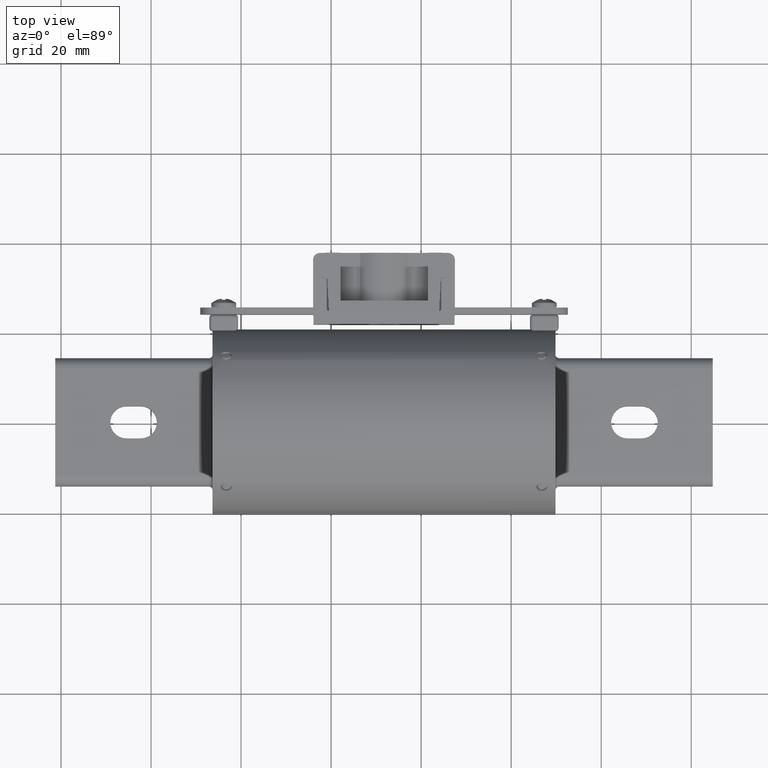
[diagram: clean part render]
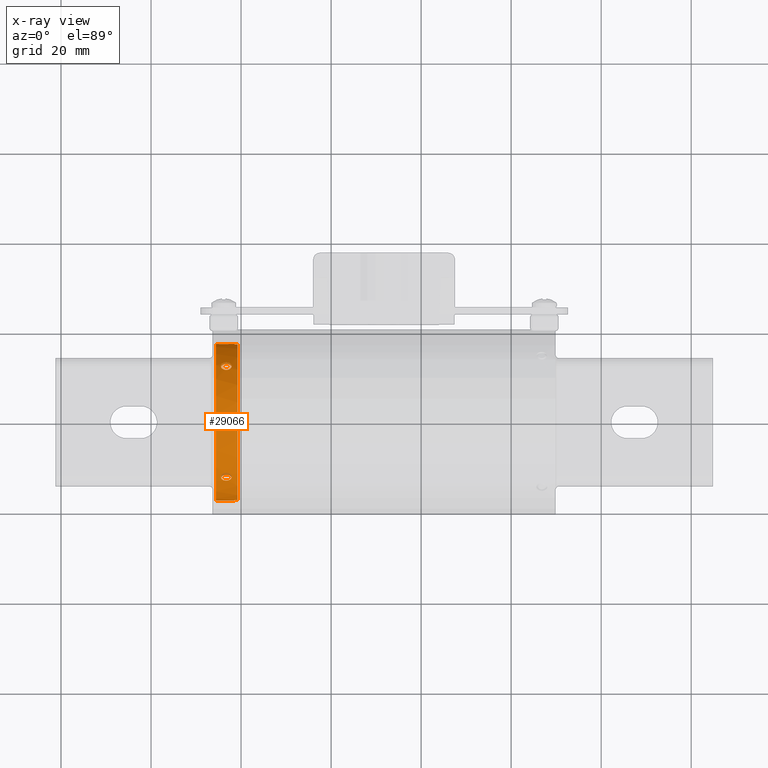
[diagram: x-ray — body ghosted, one internal face saturated and labeled with its STEP entity id]
A machine part, top view, then the same camera in x-ray: the body is ghosted and one INTERNAL B-rep face — a face not visible from any outside direction — is saturated and labeled: STEP entity #29066.
In plain terms, the highlighted cylindrical surface (bore or boss wall) has radius 17.4244 mm, axis along (1, 0, 0).
Its self-contained STEP definition (entity closure, byte-faithful):
#199 = CARTESIAN_POINT ( 'NONE',  ( -0.2053731272596947800, 0.6857686534380114100, -0.01813735378459945700 ) ) ;
#482 = CARTESIAN_POINT ( 'NONE',  ( -0.1270978318633261800, 0.6841348302265919400, -0.05057202286589389300 ) ) ;
#771 = CARTESIAN_POINT ( 'NONE',  ( -0.1070060465252214700, 0.6851493582180150400, 0.03454551280623481500 ) ) ;
#794 = ORIENTED_EDGE ( 'NONE', *, *, #84363, .F. ) ;
#1049 = CARTESIAN_POINT ( 'NONE',  ( -0.1862504825600998800, 0.6845405076635702200, 0.04477123205827906300 ) ) ;
#1505 = CARTESIAN_POINT ( 'NONE',  ( -0.1761022021065454500, -0.4762189752212091500, -0.4938055969507914600 ) ) ;
#1557 = DIRECTION ( 'NONE',  ( 0.0000000000000000000, -1.000000000000000000, -6.886690182978994900E-045 ) ) ;
#1774 = DIRECTION ( 'NONE',  ( -1.000000000000000000, 0.0000000000000000000, -3.944304526105058600E-031 ) ) ;
#1783 = CARTESIAN_POINT ( 'NONE',  ( -0.1009205708822145900, -0.5111269412556935800, -0.4575634553312367100 ) ) ;
#2049 = CARTESIAN_POINT ( 'NONE',  ( -0.03000000000000022800, 0.0000000000000000000, -1.183291357831526400E-032 ) ) ;
#2058 = CARTESIAN_POINT ( 'NONE',  ( -0.1299999999999999500, -0.4504368638349178800, -0.5173998760132858500 ) ) ;
#2096 = CARTESIAN_POINT ( 'NONE',  ( -0.1538667239239082400, 0.4549472806918523100, 0.5134439062448761200 ) ) ;
#2269 = VERTEX_POINT ( 'NONE', #77459 ) ;
#2373 = CARTESIAN_POINT ( 'NONE',  ( -0.1361980078004024200, 0.5173984086651702800, 0.4504385493224683500 ) ) ;
#2484 = EDGE_CURVE ( 'NONE', #58730, #80825, #39618, .T. ) ;
#2674 = CARTESIAN_POINT ( 'NONE',  ( -0.1008573756212167600, 0.4575991780833626500, 0.5110950550673301100 ) ) ;
#2693 = CARTESIAN_POINT ( 'NONE',  ( -0.05800000000000000300, 0.0000000000000000000, -2.287696625140934100E-032 ) ) ;
#2925 = CARTESIAN_POINT ( 'NONE',  ( -0.1299999999999999800, -0.5173998760132874100, 0.4504368638349163800 ) ) ;
#3028 = AXIS2_PLACEMENT_3D ( 'NONE', #6326, #6243, #5842 ) ;
#3149 = EDGE_CURVE ( 'NONE', #26209, #69699, #44503, .T. ) ;
#3208 = CARTESIAN_POINT ( 'NONE',  ( -0.1538697630624665000, -0.4549483046780772900, 0.5134430039707479400 ) ) ;
#3227 = EDGE_CURVE ( 'NONE', #83513, #83513, #73204, .T. ) ;
#3388 = CARTESIAN_POINT ( 'NONE',  ( -0.2500000000000000000, -0.6848905021972491200, 0.03900000000000000000 ) ) ;
#3499 = CARTESIAN_POINT ( 'NONE',  ( -0.08861661830004201300, -0.5016522245978484200, 0.4679466097413710300 ) ) ;
#3716 = EDGE_CURVE ( 'NONE', #46902, #80825, #84201, .T. ) ;
#3907 = VERTEX_POINT ( 'NONE', #36180 ) ;
#3955 = DIRECTION ( 'NONE',  ( -1.000000000000000000, -0.0000000000000000000, -3.944304526105058200E-031 ) ) ;
#4187 = CARTESIAN_POINT ( 'NONE',  ( -0.05800000000000000300, -0.6805879810869420700, -0.08599999999999996500 ) ) ;
#4208 = AXIS2_PLACEMENT_3D ( 'NONE', #57946, #18463, #64462 ) ;
#5842 = DIRECTION ( 'NONE',  ( 0.0000000000000000000, -1.000000000000000000, -6.891598729082331000E-045 ) ) ;
#6243 = DIRECTION ( 'NONE',  ( 1.000000000000000000, -0.0000000000000000000, 3.944304526105058600E-031 ) ) ;
#6326 = CARTESIAN_POINT ( 'NONE',  ( -0.2200000000000005800, 0.0000000000000000000, -8.677469957431151800E-032 ) ) ;
#6917 = CARTESIAN_POINT ( 'NONE',  ( -0.2008213689943734400, 0.6854278353745495400, -0.02817880629707372000 ) ) ;
#7200 = CARTESIAN_POINT ( 'NONE',  ( -0.1177113485480810300, 0.6845424630130819700, -0.04474122750398767900 ) ) ;
#7478 = CARTESIAN_POINT ( 'NONE',  ( -0.1176675749223793100, 0.6845446179295169300, 0.04470866561660433900 ) ) ;
#7545 = B_SPLINE_CURVE_WITH_KNOTS ( 'NONE', 3,
 ( #21068, #53911, #27700, #73536, #34329, #80062, #40937, #1505, #47536, #8187, #54204, #14777, #60734, #21358, #67308, #27965, #73829, #34603, #80337, #41223, #1783, #47838, #8454, #54493, #15054, #61008, #21636, #67565, #28243, #74119, #34890, #80633, #41511, #2058 ),
 .UNSPECIFIED., .T., .F.,
 ( 4, 2, 2, 2, 2, 2, 2, 2, 2, 2, 2, 2, 2, 2, 2, 2, 4 ),
 ( 0.0000000000000000000, 0.0004701053175745451800, 0.0009402106351490890600, 0.001410315952723632900, 0.001880421270298176800, 0.002350526587872720500, 0.002820631905447264600, 0.003290737223021808700, 0.003760842540596353600, 0.004230947858170899500, 0.004701053175745443500, 0.005171158493319989400, 0.005641263810894534300, 0.006111369128469079300, 0.006581474446043625100, 0.007051579763618169200, 0.007521685081192714200 ),
 .UNSPECIFIED. ) ;
#7550 = EDGE_CURVE ( 'NONE', #81383, #81383, #42435, .T. ) ;
#7696 = ORIENTED_EDGE ( 'NONE', *, *, #64378, .T. ) ;
#7747 = CARTESIAN_POINT ( 'NONE',  ( -0.1969361231734387500, 0.6851454718871611300, 0.03462157931716598700 ) ) ;
#8187 = CARTESIAN_POINT ( 'NONE',  ( -0.1773533191180386400, -0.4894258553667349400, -0.4807249724126215200 ) ) ;
#8292 = CARTESIAN_POINT ( 'NONE',  ( -0.03000000000000022800, 0.0000000000000000000, -1.183291357831526400E-032 ) ) ;
#8445 = CARTESIAN_POINT ( 'NONE',  ( -0.1008573756212167200, 0.5110950550673347700, -0.4575991780833571500 ) ) ;
#8454 = CARTESIAN_POINT ( 'NONE',  ( -0.08865655480384954100, -0.5016974494250306900, -0.4678979460417507800 ) ) ;
#8508 = EDGE_CURVE ( 'NONE', #70378, #46977, #27925, .T. ) ;
#8534 = EDGE_CURVE ( 'NONE', #27881, #81322, #43384, .T. ) ;
#8547 = CARTESIAN_POINT ( 'NONE',  ( -0.03000000000000022800, 0.0000000000000000000, -1.183291357831526400E-032 ) ) ;
#8733 = AXIS2_PLACEMENT_3D ( 'NONE', #2049, #1774, #1557 ) ;
#8763 = CARTESIAN_POINT ( 'NONE',  ( -0.1678511821549263600, 0.4640635709068579600, 0.5052327396169727900 ) ) ;
#9031 = CARTESIAN_POINT ( 'NONE',  ( -0.1176053171005441800, 0.5165879994016743200, 0.4513739217386337200 ) ) ;
#9108 = EDGE_CURVE ( 'NONE', #84543, #47213, #29771, .T. ) ;
#9306 = CARTESIAN_POINT ( 'NONE',  ( -0.1175242850942569700, 0.4513904857826433500, 0.5165735708841072700 ) ) ;
#9318 = DIRECTION ( 'NONE',  ( 0.0000000000000000000, 1.000000000000000000, 6.886690182978994900E-045 ) ) ;
#9523 = CARTESIAN_POINT ( 'NONE',  ( -0.1538667239239082100, -0.5134439062448776800, 0.4549472806918504200 ) ) ;
#9818 = CARTESIAN_POINT ( 'NONE',  ( -0.1361980078004025000, -0.4504385493224698500, 0.5173984086651689500 ) ) ;
#10117 = CARTESIAN_POINT ( 'NONE',  ( -0.1008573756212167300, -0.5110950550673316600, 0.4575991780833608700 ) ) ;
#10233 = EDGE_CURVE ( 'NONE', #27881, #2269, #27468, .T. ) ;
#10876 = DIRECTION ( 'NONE',  ( -1.000000000000000000, -0.0000000000000000000, -3.944304526105058200E-031 ) ) ;
#11596 = FACE_BOUND ( 'NONE', #34367, .T. ) ;
#12276 = VECTOR ( 'NONE', #33269, 39.37007874015748100 ) ;
#12647 = ORIENTED_EDGE ( 'NONE', *, *, #36096, .T. ) ;
#13461 = CARTESIAN_POINT ( 'NONE',  ( -0.1943645917125249600, 0.6849963440294356600, -0.03718542992606674300 ) ) ;
#13686 = CARTESIAN_POINT ( 'NONE',  ( -0.1009205708822145900, 0.4575634553312419900, -0.5111269412556883600 ) ) ;
#13728 = EDGE_LOOP ( 'NONE', ( #7696 ) ) ;
#13756 = CARTESIAN_POINT ( 'NONE',  ( -0.1069899629401072400, 0.6851498622437136600, -0.03454430101285904000 ) ) ;
#14047 = CARTESIAN_POINT ( 'NONE',  ( -0.1270076967630147900, 0.6841381367309085100, 0.05052742955040329100 ) ) ;
#14339 = CARTESIAN_POINT ( 'NONE',  ( -0.2067542278438368500, 0.6858732403657773500, 0.01482278100326844500 ) ) ;
#14777 = CARTESIAN_POINT ( 'NONE',  ( -0.1713857439987583300, -0.5016479693381068500, -0.4679510806506384500 ) ) ;
#14884 = DIRECTION ( 'NONE',  ( 0.0000000000000000000, -1.000000000000000000, -6.886690182978994900E-045 ) ) ;
#14957 = EDGE_CURVE ( 'NONE', #69699, #2269, #30397, .T. ) ;
#15054 = CARTESIAN_POINT ( 'NONE',  ( -0.08265620999853315300, -0.4895274880448793900, -0.4806224095622985700 ) ) ;
#15159 = DIRECTION ( 'NONE',  ( 0.0000000000000000000, -1.000000000000000000, -6.886690182978994900E-045 ) ) ;
#15373 = CARTESIAN_POINT ( 'NONE',  ( -0.1761022021065454500, 0.4762189752212091500, 0.4938055969507914600 ) ) ;
#15651 = CARTESIAN_POINT ( 'NONE',  ( -0.1009205708822145900, 0.5111269412556935800, 0.4575634553312367100 ) ) ;
#15920 = CARTESIAN_POINT ( 'NONE',  ( -0.1299999999999999500, 0.4504368638349178800, 0.5173998760132858500 ) ) ;
#16164 = CARTESIAN_POINT ( 'NONE',  ( -0.1678511821549263600, -0.5052327396169741200, 0.4640635709068563500 ) ) ;
#16229 = AXIS2_PLACEMENT_3D ( 'NONE', #8547, #54589, #15159 ) ;
#16444 = DIRECTION ( 'NONE',  ( 0.0000000000000000000, 1.000000000000000000, 6.886690182978994900E-045 ) ) ;
#16448 = CARTESIAN_POINT ( 'NONE',  ( -0.1176053171005441300, -0.4513739217386355000, 0.5165879994016727700 ) ) ;
#16725 = CARTESIAN_POINT ( 'NONE',  ( -0.1175242850942569600, -0.5165735708841087100, 0.4513904857826416800 ) ) ;
#17540 = DIRECTION ( 'NONE',  ( 1.000000000000000000, 0.0000000000000000000, 3.944304526105058600E-031 ) ) ;
#18364 = DIRECTION ( 'NONE',  ( 0.0000000000000000000, 1.000000000000000000, 6.891598729082331000E-045 ) ) ;
#18463 = DIRECTION ( 'NONE',  ( 1.000000000000000000, 0.0000000000000000000, 3.944304526105058600E-031 ) ) ;
#18476 = ORIENTED_EDGE ( 'NONE', *, *, #2484, .F. ) ;
#19308 = AXIS2_PLACEMENT_3D ( 'NONE', #2693, #48760, #9318 ) ;
#20045 = CARTESIAN_POINT ( 'NONE',  ( -0.1803103183571839200, 0.6842423947550403400, -0.04915550140042689700 ) ) ;
#20336 = CARTESIAN_POINT ( 'NONE',  ( -0.09862657430136152800, 0.6857686757045099400, -0.01813671032967386500 ) ) ;
#20441 = ORIENTED_EDGE ( 'NONE', *, *, #3227, .T. ) ;
#20622 = CARTESIAN_POINT ( 'NONE',  ( -0.1373871863289732900, 0.6838366388565196900, 0.05444235854827968900 ) ) ;
#20913 = CARTESIAN_POINT ( 'NONE',  ( -0.2082500000000002400, 0.6860000000000000500, -8.003460918938270800E-018 ) ) ;
#21057 = CARTESIAN_POINT ( 'NONE',  ( -0.1362583322692165200, 0.5173998760132906300, -0.4504368638349126000 ) ) ;
#21068 = CARTESIAN_POINT ( 'NONE',  ( -0.1299999999999999500, -0.4504368638349178800, -0.5173998760132858500 ) ) ;
#21358 = CARTESIAN_POINT ( 'NONE',  ( -0.1590794331012849400, -0.5111356818714779500, -0.4575542777913232400 ) ) ;
#21463 = ORIENTED_EDGE ( 'NONE', *, *, #27747, .F. ) ;
#21636 = CARTESIAN_POINT ( 'NONE',  ( -0.08386900941304573100, -0.4762800630600680400, -0.4937471878845605100 ) ) ;
#21787 = CARTESIAN_POINT ( 'NONE',  ( -0.2200000000000005800, -0.6860000000000000500, -8.677469957431624700E-032 ) ) ;
#21938 = CARTESIAN_POINT ( 'NONE',  ( -0.1773533191180386400, 0.4894258553667349400, 0.4807249724126215200 ) ) ;
#22229 = CARTESIAN_POINT ( 'NONE',  ( -0.08865655480384954100, 0.5016974494250306900, 0.4678979460417507800 ) ) ;
#22500 = EDGE_LOOP ( 'NONE', ( #41358 ) ) ;
#22735 = CARTESIAN_POINT ( 'NONE',  ( -0.1761022021065455400, -0.4938055969507931800, 0.4762189752212076500 ) ) ;
#23035 = CARTESIAN_POINT ( 'NONE',  ( -0.1009205708822146400, -0.4575634553312382100, 0.5111269412556918000 ) ) ;
#23344 = CARTESIAN_POINT ( 'NONE',  ( -0.1299999999999999800, -0.5173998760132874100, 0.4504368638349163800 ) ) ;
#23765 = CARTESIAN_POINT ( 'NONE',  ( -0.2500000000000000000, 0.6805879810869421800, -0.08600000000000000700 ) ) ;
#23873 = CARTESIAN_POINT ( 'NONE',  ( -0.03000000000000022800, -0.6848905021972491200, 0.03900000000000000000 ) ) ;
#24047 = ORIENTED_EDGE ( 'NONE', *, *, #42197, .T. ) ;
#24677 = CARTESIAN_POINT ( 'NONE',  ( -0.05800000000000000300, 0.0000000000000000000, -2.287696625140934100E-032 ) ) ;
#25414 = CIRCLE ( 'NONE', #19308, 0.6860000000000000500 ) ;
#26209 = VERTEX_POINT ( 'NONE', #43564 ) ;
#26378 = CARTESIAN_POINT ( 'NONE',  ( -0.2082500000000002400, 0.6860000000000001700, -0.003717816914628614300 ) ) ;
#26680 = CARTESIAN_POINT ( 'NONE',  ( -0.1593706104242856000, 0.6836902702020603000, -0.05624601716511718600 ) ) ;
#26727 = LINE ( 'NONE', #82839, #59659 ) ;
#26966 = CARTESIAN_POINT ( 'NONE',  ( -0.09612063642042213700, 0.6859693323488348400, -0.007421091931694460600 ) ) ;
#27002 = FACE_OUTER_BOUND ( 'NONE', #52946, .T. ) ;
#27253 = CARTESIAN_POINT ( 'NONE',  ( -0.1482313007817194200, 0.6836902429993098100, 0.05624634779945396300 ) ) ;
#27468 = CIRCLE ( 'NONE', #64528, 0.6860000000000000500 ) ;
#27687 = ORIENTED_EDGE ( 'NONE', *, *, #9108, .T. ) ;
#27700 = CARTESIAN_POINT ( 'NONE',  ( -0.1423992732106374400, -0.4513709578082204000, -0.5165906808259300700 ) ) ;
#27747 = EDGE_CURVE ( 'NONE', #32581, #46977, #25414, .T. ) ;
#27881 = VERTEX_POINT ( 'NONE', #63029 ) ;
#27925 = LINE ( 'NONE', #61797, #60840 ) ;
#27965 = CARTESIAN_POINT ( 'NONE',  ( -0.1423975635990244700, -0.5165912182576424300, -0.4513703484668063500 ) ) ;
#28181 = VERTEX_POINT ( 'NONE', #35488 ) ;
#28196 = DIRECTION ( 'NONE',  ( -1.000000000000000000, -0.0000000000000000000, -3.944304526105058200E-031 ) ) ;
#28227 = EDGE_CURVE ( 'NONE', #70294, #70294, #63160, .T. ) ;
#28243 = CARTESIAN_POINT ( 'NONE',  ( -0.09212651949822009400, -0.4640845415639723300, -0.5052135205813520500 ) ) ;
#28273 = CARTESIAN_POINT ( 'NONE',  ( -0.1362583322692164600, 0.4504368638349178800, 0.5173998760132858500 ) ) ;
#28562 = CARTESIAN_POINT ( 'NONE',  ( -0.1713857439987583300, 0.5016479693381068500, 0.4679510806506384500 ) ) ;
#28850 = CARTESIAN_POINT ( 'NONE',  ( -0.08265620999853315300, 0.4895274880448793900, 0.4806224095622985700 ) ) ;
#29052 = FACE_BOUND ( 'NONE', #80140, .T. ) ;
#29066 = ADVANCED_FACE ( 'NONE', ( #63997, #11596, #46574, #29052, #61954, #44524, #27002 ), #69054, .T. ) ;
#29358 = CARTESIAN_POINT ( 'NONE',  ( -0.1773533191180387800, -0.4807249724126233500, 0.4894258553667334400 ) ) ;
#29670 = CARTESIAN_POINT ( 'NONE',  ( -0.08865655480384952700, -0.4678979460417522800, 0.5016974494250291400 ) ) ;
#29751 = CARTESIAN_POINT ( 'NONE',  ( -0.09212651949822016400, 0.5052135205813568200, -0.4640845415639670600 ) ) ;
#29771 = LINE ( 'NONE', #57799, #12276 ) ;
#30318 = CARTESIAN_POINT ( 'NONE',  ( -0.08265620999853316700, 0.4806224095623036200, -0.4895274880448743900 ) ) ;
#30380 = DIRECTION ( 'NONE',  ( 1.000000000000000000, 0.0000000000000000000, 3.944304526105058200E-031 ) ) ;
#30397 = LINE ( 'NONE', #66981, #61190 ) ;
#31126 = CARTESIAN_POINT ( 'NONE',  ( -0.08264383639910906400, 0.4894618057961612200, -0.4806892996435019300 ) ) ;
#31336 = B_SPLINE_CURVE_WITH_KNOTS ( 'NONE', 3,
 ( #33063, #26378, #78759, #39639, #199, #46266, #6917, #52893, #13461, #59478, #20045, #66000, #26680, #72520, #33334, #79036, #39935, #482, #46532, #7200, #53187, #13756, #59743, #20336, #66297, #26966, #72801, #33615, #79326, #40211, #771, #46818, #7478, #53470, #14047, #60027, #20622, #66596, #27253, #73072, #33904, #79610, #40505, #1049, #47099, #7747, #53755, #14339, #60299, #20913 ),
 .UNSPECIFIED., .T., .F.,
 ( 4, 2, 2, 2, 2, 2, 2, 2, 2, 2, 2, 2, 2, 2, 2, 2, 2, 2, 2, 2, 2, 2, 2, 2, 4 ),
 ( 0.0000000000000000000, 0.0002792675739027812400, 0.0005585351478055624700, 0.0008378027217083438200, 0.001117070295611124900, 0.001675605443416689200, 0.002234140591222252900, 0.002513408165125033800, 0.002792675739027814300, 0.003071943312930595200, 0.003351210886833376100, 0.003909746034638937100, 0.004189013608541717100, 0.004468281182444497200, 0.005026816330250058100, 0.005585351478055619100, 0.005864619051958399100, 0.006143886625861179200, 0.006423154199763960100, 0.006702421773666739300, 0.007260956921472301900, 0.007540224495375082000, 0.007819492069277862000, 0.008378027217083422100, 0.008936562364888982200 ),
 .UNSPECIFIED. ) ;
#31571 = ORIENTED_EDGE ( 'NONE', *, *, #43984, .T. ) ;
#32581 = VERTEX_POINT ( 'NONE', #83156 ) ;
#32822 = ORIENTED_EDGE ( 'NONE', *, *, #49709, .T. ) ;
#33063 = CARTESIAN_POINT ( 'NONE',  ( -0.2082500000000002400, 0.6860000000000000500, -8.003460918938270800E-018 ) ) ;
#33269 = DIRECTION ( 'NONE',  ( 1.000000000000000000, 0.0000000000000000000, 3.944304526105058200E-031 ) ) ;
#33334 = CARTESIAN_POINT ( 'NONE',  ( -0.1446323507030366800, 0.6837201238416864600, -0.05588658802452727000 ) ) ;
#33615 = CARTESIAN_POINT ( 'NONE',  ( -0.09574733878315165600, 0.6860002182120086300, 0.007322751261118764400 ) ) ;
#33904 = CARTESIAN_POINT ( 'NONE',  ( -0.1666762264535678100, 0.6838134834869286100, 0.05480069412848781500 ) ) ;
#34115 = ORIENTED_EDGE ( 'NONE', *, *, #3149, .T. ) ;
#34329 = CARTESIAN_POINT ( 'NONE',  ( -0.1591182037604398100, -0.4575854690947999700, -0.5111072857013370100 ) ) ;
#34367 = EDGE_LOOP ( 'NONE', ( #68327 ) ) ;
#34603 = CARTESIAN_POINT ( 'NONE',  ( -0.1238361022297082300, -0.5174013393181439200, -0.4504351829917055400 ) ) ;
#34890 = CARTESIAN_POINT ( 'NONE',  ( -0.1061337075435031300, -0.4549514866854794700, -0.5134401323949278100 ) ) ;
#34926 = CARTESIAN_POINT ( 'NONE',  ( -0.1299999999999999800, -0.4504368638349178800, -0.5173998760132858500 ) ) ;
#35041 = CARTESIAN_POINT ( 'NONE',  ( -0.05800000000000000300, 0.0000000000000000000, -2.287696625140934100E-032 ) ) ;
#35200 = CARTESIAN_POINT ( 'NONE',  ( -0.1590794331012849400, 0.5111356818714779500, 0.4575542777913232400 ) ) ;
#35259 = EDGE_LOOP ( 'NONE', ( #34115, #55372, #39684, #43849, #31571, #73844, #21463, #12647, #78265, #51091, #794, #27687, #76700, #71011, #18476, #24047 ) ) ;
#35485 = CARTESIAN_POINT ( 'NONE',  ( -0.08386900941304573100, 0.4762800630600680400, 0.4937471878845605100 ) ) ;
#35488 = CARTESIAN_POINT ( 'NONE',  ( -0.1299999999999999800, 0.4504368638349178800, 0.5173998760132858500 ) ) ;
#35717 = CARTESIAN_POINT ( 'NONE',  ( -0.1362583322692164600, -0.5173998760132874100, 0.4504368638349163200 ) ) ;
#35992 = CARTESIAN_POINT ( 'NONE',  ( -0.1713857439987583100, -0.4679510806506401200, 0.5016479693381050700 ) ) ;
#36096 = EDGE_CURVE ( 'NONE', #32581, #79690, #74109, .T. ) ;
#36180 = CARTESIAN_POINT ( 'NONE',  ( -0.03000000000000024200, -0.6805879810869421800, -0.08600000000000000700 ) ) ;
#36280 = CARTESIAN_POINT ( 'NONE',  ( -0.08265620999853316700, -0.4806224095623001200, 0.4895274880448779500 ) ) ;
#36455 = LINE ( 'NONE', #70200, #54000 ) ;
#36568 = CARTESIAN_POINT ( 'NONE',  ( -0.08389607689712652600, 0.4762114152801583100, -0.4938132305098137900 ) ) ;
#37730 = CARTESIAN_POINT ( 'NONE',  ( -0.03000000000000022800, 0.0000000000000000000, -1.183291357831526400E-032 ) ) ;
#38442 = CARTESIAN_POINT ( 'NONE',  ( -0.08386900941304575900, 0.4937471878845653400, -0.4762800630600626000 ) ) ;
#39572 = CARTESIAN_POINT ( 'NONE',  ( -0.05800000000000000300, -0.6848905021972490100, 0.03899999999999997900 ) ) ;
#39618 = CIRCLE ( 'NONE', #69644, 0.6860000000000000500 ) ;
#39639 = CARTESIAN_POINT ( 'NONE',  ( -0.2064553323551585100, 0.6858548046151651300, -0.01456427859197289300 ) ) ;
#39684 = ORIENTED_EDGE ( 'NONE', *, *, #10233, .F. ) ;
#39935 = CARTESIAN_POINT ( 'NONE',  ( -0.1339098816857773900, 0.6839207558861500900, -0.05338909152657584500 ) ) ;
#39942 = CARTESIAN_POINT ( 'NONE',  ( -0.03000000000000026600, -0.6848905021972491200, -0.03900000000000000000 ) ) ;
#40211 = CARTESIAN_POINT ( 'NONE',  ( -0.1028201016230595900, 0.6854508029438205500, 0.02826819745941630200 ) ) ;
#40505 = CARTESIAN_POINT ( 'NONE',  ( -0.1801362900202833100, 0.6842618372325055500, 0.04884575682196439600 ) ) ;
#40937 = CARTESIAN_POINT ( 'NONE',  ( -0.1713786765366131500, -0.4679489815583581800, -0.5016495097168558500 ) ) ;
#41223 = CARTESIAN_POINT ( 'NONE',  ( -0.1062056731089950800, -0.5134676871773509200, -0.4549203365164947700 ) ) ;
#41358 = ORIENTED_EDGE ( 'NONE', *, *, #68449, .T. ) ;
#41511 = CARTESIAN_POINT ( 'NONE',  ( -0.1237416677307834500, -0.4504368638349179900, -0.5173998760132857400 ) ) ;
#41537 = AXIS2_PLACEMENT_3D ( 'NONE', #57562, #17540, #18364 ) ;
#41545 = CARTESIAN_POINT ( 'NONE',  ( -0.1423992732106374400, 0.4513709578082204000, 0.5165906808259300700 ) ) ;
#41651 = DIRECTION ( 'NONE',  ( 0.0000000000000000000, 1.000000000000000000, 6.886690182978994900E-045 ) ) ;
#41813 = CARTESIAN_POINT ( 'NONE',  ( -0.1423975635990244700, 0.5165912182576424300, 0.4513703484668063500 ) ) ;
#42089 = CARTESIAN_POINT ( 'NONE',  ( -0.09212651949822009400, 0.4640845415639723300, 0.5052135205813520500 ) ) ;
#42197 = EDGE_CURVE ( 'NONE', #58730, #26209, #36455, .T. ) ;
#42435 = CIRCLE ( 'NONE', #3028, 0.6860000000000000500 ) ;
#42606 = CARTESIAN_POINT ( 'NONE',  ( -0.1590794331012848900, -0.4575542777913247400, 0.5111356818714766200 ) ) ;
#42896 = CARTESIAN_POINT ( 'NONE',  ( -0.08386900941304574500, -0.4937471878845620700, 0.4762800630600662600 ) ) ;
#43384 = LINE ( 'NONE', #73494, #78106 ) ;
#43564 = CARTESIAN_POINT ( 'NONE',  ( -0.03000000000000022800, -0.6805879810869421800, 0.08600000000000000700 ) ) ;
#43649 = VERTEX_POINT ( 'NONE', #48738 ) ;
#43849 = ORIENTED_EDGE ( 'NONE', *, *, #8534, .T. ) ;
#43984 = EDGE_CURVE ( 'NONE', #81322, #70378, #83842, .T. ) ;
#44345 = DIRECTION ( 'NONE',  ( 0.0000000000000000000, -1.000000000000000000, -6.886690182978994900E-045 ) ) ;
#44503 = CIRCLE ( 'NONE', #8733, 0.6860000000000000500 ) ;
#44524 = FACE_OUTER_BOUND ( 'NONE', #35259, .T. ) ;
#46121 = CARTESIAN_POINT ( 'NONE',  ( -0.1300000000000000000, 0.5173998760132907400, -0.4504368638349127200 ) ) ;
#46266 = CARTESIAN_POINT ( 'NONE',  ( -0.2025492117762587900, 0.6855546499994761300, -0.02494857720564911900 ) ) ;
#46311 = CARTESIAN_POINT ( 'NONE',  ( -0.09218123852921475400, 0.4640328269403944400, -0.5052609239331372600 ) ) ;
#46532 = CARTESIAN_POINT ( 'NONE',  ( -0.1238055416417742900, 0.6842642760890994500, -0.04881149019279218400 ) ) ;
#46574 = FACE_BOUND ( 'NONE', #70160, .T. ) ;
#46818 = CARTESIAN_POINT ( 'NONE',  ( -0.1147772907691814400, 0.6846975828873637100, 0.04233177138511957200 ) ) ;
#46841 = AXIS2_PLACEMENT_3D ( 'NONE', #8292, #54306, #14884 ) ;
#46902 = VERTEX_POINT ( 'NONE', #23873 ) ;
#46977 = VERTEX_POINT ( 'NONE', #82888 ) ;
#47099 = CARTESIAN_POINT ( 'NONE',  ( -0.1891468276347674200, 0.6846934391015682100, 0.04239855306188207400 ) ) ;
#47213 = VERTEX_POINT ( 'NONE', #39942 ) ;
#47304 = CARTESIAN_POINT ( 'NONE',  ( -0.1299999999999999800, -0.5173998760132874100, 0.4504368638349163200 ) ) ;
#47527 = CARTESIAN_POINT ( 'NONE',  ( -0.1423992732106374700, 0.5165906808259347300, -0.4513709578082151800 ) ) ;
#47536 = CARTESIAN_POINT ( 'NONE',  ( -0.1773466671582660500, -0.4806885973163564900, -0.4894615811405522700 ) ) ;
#47838 = CARTESIAN_POINT ( 'NONE',  ( -0.09218123852921475400, -0.5052609239331420400, -0.4640328269403890500 ) ) ;
#48007 = CARTESIAN_POINT ( 'NONE',  ( -0.1299999999999999800, 0.5173998760132906300, -0.4504368638349127200 ) ) ;
#48159 = CARTESIAN_POINT ( 'NONE',  ( -0.1591182037604398100, 0.4575854690947999700, 0.5111072857013370100 ) ) ;
#48281 = CIRCLE ( 'NONE', #4208, 0.6860000000000000500 ) ;
#48408 = CARTESIAN_POINT ( 'NONE',  ( -0.1237416677307835000, 0.5173998760132908500, -0.4504368638349128300 ) ) ;
#48447 = CARTESIAN_POINT ( 'NONE',  ( -0.1238361022297082300, 0.5174013393181439200, 0.4504351829917055400 ) ) ;
#48734 = CARTESIAN_POINT ( 'NONE',  ( -0.1061337075435031300, 0.4549514866854794700, 0.5134401323949278100 ) ) ;
#48738 = CARTESIAN_POINT ( 'NONE',  ( -0.2082500000000002400, 0.6860000000000000500, -8.214014175613323100E-032 ) ) ;
#48760 = DIRECTION ( 'NONE',  ( 1.000000000000000000, 0.0000000000000000000, 3.944304526105058600E-031 ) ) ;
#48768 = CARTESIAN_POINT ( 'NONE',  ( -0.08865655480384958300, 0.4678979460417558300, -0.5016974494250260300 ) ) ;
#48982 = CARTESIAN_POINT ( 'NONE',  ( -0.1423992732106374200, -0.5165906808259316300, 0.4513709578082187300 ) ) ;
#49274 = CARTESIAN_POINT ( 'NONE',  ( -0.1423975635990244500, -0.4513703484668081800, 0.5165912182576412000 ) ) ;
#49558 = CARTESIAN_POINT ( 'NONE',  ( -0.09212651949822019100, -0.5052135205813536000, 0.4640845415639705500 ) ) ;
#49564 = CARTESIAN_POINT ( 'NONE',  ( -0.1538667239239082100, 0.5134439062448809000, -0.4549472806918470300 ) ) ;
#49709 = EDGE_CURVE ( 'NONE', #56054, #56054, #7545, .T. ) ;
#50351 = EDGE_CURVE ( 'NONE', #3907, #74696, #26727, .T. ) ;
#50437 = CARTESIAN_POINT ( 'NONE',  ( -0.1591182037604399700, 0.5111072857013417800, -0.4575854690947949700 ) ) ;
#50814 = AXIS2_PLACEMENT_3D ( 'NONE', #37730, #83507, #44345 ) ;
#51091 = ORIENTED_EDGE ( 'NONE', *, *, #50351, .T. ) ;
#51431 = CARTESIAN_POINT ( 'NONE',  ( -0.1678511821549263600, 0.5052327396169774600, -0.4640635709068528000 ) ) ;
#51549 = VECTOR ( 'NONE', #3955, 39.37007874015748100 ) ;
#52893 = CARTESIAN_POINT ( 'NONE',  ( -0.1967394698513569300, 0.6851491892999186400, -0.03429214242698016400 ) ) ;
#52935 = CARTESIAN_POINT ( 'NONE',  ( -0.1713786765366130100, 0.5016495097168604000, -0.4679489815583527400 ) ) ;
#52946 = EDGE_LOOP ( 'NONE', ( #58146 ) ) ;
#53187 = CARTESIAN_POINT ( 'NONE',  ( -0.1148703491624648300, 0.6846923920056577900, -0.04241743681356411500 ) ) ;
#53470 = CARTESIAN_POINT ( 'NONE',  ( -0.1237793595373549400, 0.6842653162865109900, 0.04879729136751240900 ) ) ;
#53620 = CARTESIAN_POINT ( 'NONE',  ( -0.1761022021065454000, 0.4938055969507964000, -0.4762189752212041000 ) ) ;
#53755 = CARTESIAN_POINT ( 'NONE',  ( -0.2011305311296530400, 0.6854472156717530400, 0.02835368079039923100 ) ) ;
#53911 = CARTESIAN_POINT ( 'NONE',  ( -0.1362583322692164600, -0.4504368638349178800, -0.5173998760132858500 ) ) ;
#54000 = VECTOR ( 'NONE', #76775, 39.37007874015748100 ) ;
#54204 = CARTESIAN_POINT ( 'NONE',  ( -0.1761276100405496100, -0.4937531385149012100, -0.4762738048957041400 ) ) ;
#54306 = DIRECTION ( 'NONE',  ( -1.000000000000000000, 0.0000000000000000000, -3.944304526105058600E-031 ) ) ;
#54493 = CARTESIAN_POINT ( 'NONE',  ( -0.08389607689712652600, -0.4938132305098190100, -0.4762114152801535900 ) ) ;
#54589 = DIRECTION ( 'NONE',  ( -1.000000000000000000, 0.0000000000000000000, -3.944304526105058600E-031 ) ) ;
#54748 = VECTOR ( 'NONE', #30380, 39.37007874015748100 ) ;
#54803 = CARTESIAN_POINT ( 'NONE',  ( -0.1713786765366131500, 0.4679489815583581800, 0.5016495097168558500 ) ) ;
#55079 = CARTESIAN_POINT ( 'NONE',  ( -0.1062056731089950800, 0.5134676871773509200, 0.4549203365164947700 ) ) ;
#55366 = CARTESIAN_POINT ( 'NONE',  ( -0.1237416677307834500, 0.4504368638349179900, 0.5173998760132857400 ) ) ;
#55372 = ORIENTED_EDGE ( 'NONE', *, *, #14957, .T. ) ;
#55598 = CARTESIAN_POINT ( 'NONE',  ( -0.1591182037604398900, -0.5111072857013383400, 0.4575854690947983600 ) ) ;
#55878 = CARTESIAN_POINT ( 'NONE',  ( -0.1238361022297081700, -0.4504351829917073200, 0.5174013393181423600 ) ) ;
#56054 = VERTEX_POINT ( 'NONE', #34926 ) ;
#56170 = CARTESIAN_POINT ( 'NONE',  ( -0.1061337075435031500, -0.5134401323949292500, 0.4549514866854777500 ) ) ;
#56249 = CARTESIAN_POINT ( 'NONE',  ( -0.1773466671582659700, 0.4894615811405572700, -0.4806885973163514400 ) ) ;
#56913 = CARTESIAN_POINT ( 'NONE',  ( -0.03000000000000027300, 0.6848905021972491200, -0.03900000000000000000 ) ) ;
#57562 = CARTESIAN_POINT ( 'NONE',  ( -0.2500000000000000000, 0.0000000000000000000, -9.860761315262646500E-032 ) ) ;
#57799 = CARTESIAN_POINT ( 'NONE',  ( -0.2500000000000000000, -0.6848905021972491200, -0.03900000000000000000 ) ) ;
#57847 = CARTESIAN_POINT ( 'NONE',  ( -0.1773533191180387000, 0.4807249724126266300, -0.4894258553667298300 ) ) ;
#57946 = CARTESIAN_POINT ( 'NONE',  ( -0.05800000000000000300, 0.0000000000000000000, -2.287696625140934100E-032 ) ) ;
#58146 = ORIENTED_EDGE ( 'NONE', *, *, #7550, .T. ) ;
#58730 = VERTEX_POINT ( 'NONE', #80556 ) ;
#58861 = CARTESIAN_POINT ( 'NONE',  ( -0.1761276100405496900, 0.4762738048957097500, -0.4937531385148964400 ) ) ;
#59478 = CARTESIAN_POINT ( 'NONE',  ( -0.1865833727924017000, 0.6845444674998064600, -0.04496512143120635900 ) ) ;
#59659 = VECTOR ( 'NONE', #10876, 39.37007874015748100 ) ;
#59743 = CARTESIAN_POINT ( 'NONE',  ( -0.1028638554773779500, 0.6854475648985750600, -0.02835671227442170700 ) ) ;
#59892 = CARTESIAN_POINT ( 'NONE',  ( -0.1713857439987583300, 0.4679510806506439500, -0.5016479693381021800 ) ) ;
#60027 = CARTESIAN_POINT ( 'NONE',  ( -0.1338118490341619300, 0.6839233756380214100, 0.05335567001270128500 ) ) ;
#60299 = CARTESIAN_POINT ( 'NONE',  ( -0.2082500000000002400, 0.6859999999999997200, 0.007435633829257178200 ) ) ;
#60524 = CARTESIAN_POINT ( 'NONE',  ( -0.1679154060340916400, 0.4641136503586637000, -0.5051872147611378100 ) ) ;
#60734 = CARTESIAN_POINT ( 'NONE',  ( -0.1679154060340917500, -0.5051872147611427000, -0.4641136503586585400 ) ) ;
#60840 = VECTOR ( 'NONE', #75361, 39.37007874015748100 ) ;
#60866 = B_SPLINE_CURVE_WITH_KNOTS ( 'NONE', 3,
 ( #80663, #28273, #41545, #2096, #48159, #8763, #54803, #15373, #61320, #21938, #67876, #28562, #74423, #35200, #80935, #41813, #2373, #48447, #9031, #55079, #15651, #61591, #22229, #68161, #28850, #74697, #35485, #81218, #42089, #2674, #48734, #9306, #55366, #15920 ),
 .UNSPECIFIED., .T., .F.,
 ( 4, 2, 2, 2, 2, 2, 2, 2, 2, 2, 2, 2, 2, 2, 2, 2, 4 ),
 ( 0.0000000000000000000, 0.0004701053175745451800, 0.0009402106351490890600, 0.001410315952723632900, 0.001880421270298176800, 0.002350526587872720500, 0.002820631905447264600, 0.003290737223021808700, 0.003760842540596353600, 0.004230947858170899500, 0.004701053175745443500, 0.005171158493319989400, 0.005641263810894534300, 0.006111369128469079300, 0.006581474446043625100, 0.007051579763618169200, 0.007521685081192714200 ),
 .UNSPECIFIED. ) ;
#61008 = CARTESIAN_POINT ( 'NONE',  ( -0.08264383639910905000, -0.4806892996435068700, -0.4894618057961563400 ) ) ;
#61190 = VECTOR ( 'NONE', #28196, 39.37007874015748100 ) ;
#61320 = CARTESIAN_POINT ( 'NONE',  ( -0.1773466671582660500, 0.4806885973163564900, 0.4894615811405522700 ) ) ;
#61591 = CARTESIAN_POINT ( 'NONE',  ( -0.09218123852921475400, 0.5052609239331420400, 0.4640328269403890500 ) ) ;
#61797 = CARTESIAN_POINT ( 'NONE',  ( -0.2500000000000000000, 0.6848905021972491200, -0.03900000000000000000 ) ) ;
#61954 = FACE_BOUND ( 'NONE', #13728, .T. ) ;
#62103 = CARTESIAN_POINT ( 'NONE',  ( -0.1713786765366131500, -0.5016495097168572900, 0.4679489815583564000 ) ) ;
#62394 = CARTESIAN_POINT ( 'NONE',  ( -0.1062056731089950900, -0.4549203365164962700, 0.5134676871773492500 ) ) ;
#62680 = CARTESIAN_POINT ( 'NONE',  ( -0.1237416677307835000, -0.5173998760132876300, 0.4504368638349164900 ) ) ;
#63029 = CARTESIAN_POINT ( 'NONE',  ( -0.05800000000000000300, 0.6848905021972490100, 0.03899999999999997900 ) ) ;
#63160 = B_SPLINE_CURVE_WITH_KNOTS ( 'NONE', 3,
 ( #2925, #35717, #48982, #9523, #55598, #16164, #62103, #22735, #68652, #29358, #75222, #35992, #81751, #42606, #3208, #49274, #9818, #55878, #16448, #62394, #23035, #68917, #29670, #75496, #36280, #82046, #42896, #3499, #49558, #10117, #56170, #16725, #62680, #23344 ),
 .UNSPECIFIED., .T., .F.,
 ( 4, 2, 2, 2, 2, 2, 2, 2, 2, 2, 2, 2, 2, 2, 2, 2, 4 ),
 ( 0.0000000000000000000, 0.0004701053175745437700, 0.0009402106351490875400, 0.001410315952723631200, 0.001880421270298175100, 0.002350526587872719200, 0.002820631905447262400, 0.003290737223021806500, 0.003760842540596351000, 0.004230947858170895100, 0.004701053175745440900, 0.005171158493319985000, 0.005641263810894529100, 0.006111369128469074100, 0.006581474446043619100, 0.007051579763618164000, 0.007521685081192709000 ),
 .UNSPECIFIED. ) ;
#63997 = FACE_BOUND ( 'NONE', #22500, .T. ) ;
#64378 = EDGE_CURVE ( 'NONE', #28181, #28181, #60866, .T. ) ;
#64462 = DIRECTION ( 'NONE',  ( 0.0000000000000000000, 1.000000000000000000, 6.886690182978994900E-045 ) ) ;
#64528 = AXIS2_PLACEMENT_3D ( 'NONE', #35041, #80761, #41651 ) ;
#66000 = CARTESIAN_POINT ( 'NONE',  ( -0.1667748428399120400, 0.6838161131733960800, -0.05476715678642053000 ) ) ;
#66228 = CARTESIAN_POINT ( 'NONE',  ( -0.1590794331012849400, 0.4575542777913282900, -0.5111356818714730700 ) ) ;
#66297 = CARTESIAN_POINT ( 'NONE',  ( -0.09756175904295851000, 0.6858534418719093300, -0.01463057760378591100 ) ) ;
#66596 = CARTESIAN_POINT ( 'NONE',  ( -0.1445778849720037500, 0.6837207778842807600, 0.05587859103623481900 ) ) ;
#66981 = CARTESIAN_POINT ( 'NONE',  ( -0.2500000000000000000, 0.6805879810869421800, 0.08600000000000000700 ) ) ;
#67281 = CARTESIAN_POINT ( 'NONE',  ( -0.05800000000000000300, -0.6848905021972490100, -0.03899999999999997900 ) ) ;
#67308 = CARTESIAN_POINT ( 'NONE',  ( -0.1538697630624665200, -0.5134430039707492700, -0.4549483046780752900 ) ) ;
#67556 = CARTESIAN_POINT ( 'NONE',  ( -0.1538697630624664700, 0.4549483046780806200, -0.5134430039707444900 ) ) ;
#67560 = CARTESIAN_POINT ( 'NONE',  ( -0.03000000000000022800, 0.6805879810869421800, 0.08600000000000000700 ) ) ;
#67565 = CARTESIAN_POINT ( 'NONE',  ( -0.08861661830004209700, -0.4679466097413728100, -0.5016522245978468600 ) ) ;
#67876 = CARTESIAN_POINT ( 'NONE',  ( -0.1761276100405496100, 0.4937531385149012100, 0.4762738048957041400 ) ) ;
#68161 = CARTESIAN_POINT ( 'NONE',  ( -0.08389607689712652600, 0.4938132305098190100, 0.4762114152801535900 ) ) ;
#68327 = ORIENTED_EDGE ( 'NONE', *, *, #28227, .T. ) ;
#68449 = EDGE_CURVE ( 'NONE', #43649, #43649, #31336, .T. ) ;
#68652 = CARTESIAN_POINT ( 'NONE',  ( -0.1773466671582659100, -0.4894615811405541600, 0.4806885973163550500 ) ) ;
#68748 = CIRCLE ( 'NONE', #50814, 0.6860000000000000500 ) ;
#68917 = CARTESIAN_POINT ( 'NONE',  ( -0.09218123852921474000, -0.4640328269403908300, 0.5052609239331403700 ) ) ;
#69054 = CYLINDRICAL_SURFACE ( 'NONE', #41537, 0.6860000000000000500 ) ;
#69644 = AXIS2_PLACEMENT_3D ( 'NONE', #24677, #76699, #16444 ) ;
#69699 = VERTEX_POINT ( 'NONE', #67560 ) ;
#70160 = EDGE_LOOP ( 'NONE', ( #32822 ) ) ;
#70200 = CARTESIAN_POINT ( 'NONE',  ( -0.2500000000000000000, -0.6805879810869421800, 0.08600000000000000700 ) ) ;
#70294 = VERTEX_POINT ( 'NONE', #47304 ) ;
#70378 = VERTEX_POINT ( 'NONE', #56913 ) ;
#70792 = CARTESIAN_POINT ( 'NONE',  ( -0.1423975635990244200, 0.4513703484668120700, -0.5165912182576377600 ) ) ;
#70859 = CIRCLE ( 'NONE', #46841, 0.6860000000000000500 ) ;
#71011 = ORIENTED_EDGE ( 'NONE', *, *, #3716, .T. ) ;
#71769 = CARTESIAN_POINT ( 'NONE',  ( -0.03000000000000022800, 0.6848905021972491200, 0.03900000000000000000 ) ) ;
#71999 = CARTESIAN_POINT ( 'NONE',  ( -0.1361980078004024500, 0.4504385493224735100, -0.5173984086651657300 ) ) ;
#72520 = CARTESIAN_POINT ( 'NONE',  ( -0.1483603826506330000, 0.6836897796933817400, -0.05625197904777663000 ) ) ;
#72801 = CARTESIAN_POINT ( 'NONE',  ( -0.09575133616472657200, 0.6859998904383950400, -0.003691996309427517400 ) ) ;
#73072 = CARTESIAN_POINT ( 'NONE',  ( -0.1593726648312146800, 0.6836893481701636900, 0.05625722399467097300 ) ) ;
#73204 = B_SPLINE_CURVE_WITH_KNOTS ( 'NONE', 3,
 ( #46121, #21057, #47527, #49564, #50437, #51431, #52935, #53620, #56249, #57847, #58861, #59892, #60524, #66228, #67556, #70792, #71999, #77043, #79774, #82347, #13686, #46311, #48768, #36568, #30318, #31126, #38442, #74444, #29751, #8445, #82996, #75228, #48408, #84334 ),
 .UNSPECIFIED., .T., .F.,
 ( 4, 2, 2, 2, 2, 2, 2, 2, 2, 2, 2, 2, 2, 2, 2, 2, 4 ),
 ( 0.0000000000000000000, 0.0004701053175745449100, 0.0009402106351490898200, 0.001410315952723634700, 0.001880421270298179600, 0.002350526587872724400, 0.002820631905447269300, 0.003290737223021814300, 0.003760842540596357500, 0.004230947858170902100, 0.004701053175745445300, 0.005171158493319989400, 0.005641263810894533500, 0.006111369128469077600, 0.006581474446043621700, 0.007051579763618165800, 0.007521685081192709800 ),
 .UNSPECIFIED. ) ;
#73494 = CARTESIAN_POINT ( 'NONE',  ( -0.2500000000000000000, 0.6848905021972491200, 0.03900000000000000000 ) ) ;
#73536 = CARTESIAN_POINT ( 'NONE',  ( -0.1538667239239082400, -0.4549472806918523100, -0.5134439062448761200 ) ) ;
#73829 = CARTESIAN_POINT ( 'NONE',  ( -0.1361980078004024200, -0.5173984086651702800, -0.4504385493224683500 ) ) ;
#73844 = ORIENTED_EDGE ( 'NONE', *, *, #8508, .T. ) ;
#74109 = LINE ( 'NONE', #23765, #54748 ) ;
#74119 = CARTESIAN_POINT ( 'NONE',  ( -0.1008573756212167600, -0.4575991780833626500, -0.5110950550673301100 ) ) ;
#74342 = DIRECTION ( 'NONE',  ( 1.000000000000000000, 0.0000000000000000000, 3.944304526105058200E-031 ) ) ;
#74423 = CARTESIAN_POINT ( 'NONE',  ( -0.1679154060340917500, 0.5051872147611427000, 0.4641136503586585400 ) ) ;
#74444 = CARTESIAN_POINT ( 'NONE',  ( -0.08861661830004209700, 0.5016522245978518600, -0.4679466097413678100 ) ) ;
#74696 = VERTEX_POINT ( 'NONE', #4187 ) ;
#74697 = CARTESIAN_POINT ( 'NONE',  ( -0.08264383639910905000, 0.4806892996435068700, 0.4894618057961563400 ) ) ;
#75222 = CARTESIAN_POINT ( 'NONE',  ( -0.1761276100405496400, -0.4762738048957059200, 0.4937531385148995500 ) ) ;
#75228 = CARTESIAN_POINT ( 'NONE',  ( -0.1175242850942570100, 0.5165735708841120400, -0.4513904857826380700 ) ) ;
#75361 = DIRECTION ( 'NONE',  ( -1.000000000000000000, -0.0000000000000000000, -3.944304526105058200E-031 ) ) ;
#75496 = CARTESIAN_POINT ( 'NONE',  ( -0.08389607689712656700, -0.4762114152801550900, 0.4938132305098170700 ) ) ;
#75960 = EDGE_CURVE ( 'NONE', #47213, #46902, #70859, .T. ) ;
#76530 = EDGE_CURVE ( 'NONE', #79690, #3907, #68748, .T. ) ;
#76699 = DIRECTION ( 'NONE',  ( 1.000000000000000000, 0.0000000000000000000, 3.944304526105058600E-031 ) ) ;
#76700 = ORIENTED_EDGE ( 'NONE', *, *, #75960, .T. ) ;
#76775 = DIRECTION ( 'NONE',  ( 1.000000000000000000, 0.0000000000000000000, 3.944304526105058200E-031 ) ) ;
#77043 = CARTESIAN_POINT ( 'NONE',  ( -0.1238361022297082100, 0.4504351829917112000, -0.5174013393181391400 ) ) ;
#77459 = CARTESIAN_POINT ( 'NONE',  ( -0.05800000000000000300, 0.6805879810869420700, 0.08599999999999996500 ) ) ;
#78106 = VECTOR ( 'NONE', #74342, 39.37007874015748100 ) ;
#78166 = CARTESIAN_POINT ( 'NONE',  ( -0.03000000000000021400, 0.6805879810869421800, -0.08600000000000000700 ) ) ;
#78265 = ORIENTED_EDGE ( 'NONE', *, *, #76530, .T. ) ;
#78759 = CARTESIAN_POINT ( 'NONE',  ( -0.2078850375256520400, 0.6859698005094969600, -0.007373195614645263400 ) ) ;
#79036 = CARTESIAN_POINT ( 'NONE',  ( -0.1374169884014809500, 0.6838359377198675000, -0.05445115930725197300 ) ) ;
#79326 = CARTESIAN_POINT ( 'NONE',  ( -0.09721948888850884300, 0.6858753860940032300, 0.01472579350441021100 ) ) ;
#79610 = CARTESIAN_POINT ( 'NONE',  ( -0.1769042948295612100, 0.6841348910630569200, 0.05057123588575252600 ) ) ;
#79690 = VERTEX_POINT ( 'NONE', #78166 ) ;
#79774 = CARTESIAN_POINT ( 'NONE',  ( -0.1176053171005441700, 0.4513739217386390500, -0.5165879994016695500 ) ) ;
#80062 = CARTESIAN_POINT ( 'NONE',  ( -0.1678511821549263600, -0.4640635709068579600, -0.5052327396169727900 ) ) ;
#80140 = EDGE_LOOP ( 'NONE', ( #20441 ) ) ;
#80337 = CARTESIAN_POINT ( 'NONE',  ( -0.1176053171005441800, -0.5165879994016743200, -0.4513739217386337200 ) ) ;
#80556 = CARTESIAN_POINT ( 'NONE',  ( -0.05800000000000000300, -0.6805879810869420700, 0.08599999999999996500 ) ) ;
#80633 = CARTESIAN_POINT ( 'NONE',  ( -0.1175242850942569700, -0.4513904857826433500, -0.5165735708841072700 ) ) ;
#80663 = CARTESIAN_POINT ( 'NONE',  ( -0.1299999999999999500, 0.4504368638349178800, 0.5173998760132858500 ) ) ;
#80761 = DIRECTION ( 'NONE',  ( 1.000000000000000000, 0.0000000000000000000, 3.944304526105058600E-031 ) ) ;
#80825 = VERTEX_POINT ( 'NONE', #39572 ) ;
#80935 = CARTESIAN_POINT ( 'NONE',  ( -0.1538697630624665200, 0.5134430039707492700, 0.4549483046780752900 ) ) ;
#81218 = CARTESIAN_POINT ( 'NONE',  ( -0.08861661830004209700, 0.4679466097413728100, 0.5016522245978468600 ) ) ;
#81322 = VERTEX_POINT ( 'NONE', #71769 ) ;
#81383 = VERTEX_POINT ( 'NONE', #21787 ) ;
#81751 = CARTESIAN_POINT ( 'NONE',  ( -0.1679154060340917200, -0.4641136503586602000, 0.5051872147611411500 ) ) ;
#82046 = CARTESIAN_POINT ( 'NONE',  ( -0.08264383639910905000, -0.4894618057961580000, 0.4806892996435053200 ) ) ;
#82347 = CARTESIAN_POINT ( 'NONE',  ( -0.1062056731089950600, 0.4549203365164997100, -0.5134676871773458100 ) ) ;
#82839 = CARTESIAN_POINT ( 'NONE',  ( -0.2500000000000000000, -0.6805879810869421800, -0.08600000000000000700 ) ) ;
#82888 = CARTESIAN_POINT ( 'NONE',  ( -0.05800000000000000300, 0.6848905021972490100, -0.03899999999999997900 ) ) ;
#82996 = CARTESIAN_POINT ( 'NONE',  ( -0.1061337075435031700, 0.5134401323949323600, -0.4549514866854741400 ) ) ;
#83156 = CARTESIAN_POINT ( 'NONE',  ( -0.05800000000000000300, 0.6805879810869420700, -0.08599999999999996500 ) ) ;
#83507 = DIRECTION ( 'NONE',  ( -1.000000000000000000, 0.0000000000000000000, -3.944304526105058600E-031 ) ) ;
#83513 = VERTEX_POINT ( 'NONE', #48007 ) ;
#83842 = CIRCLE ( 'NONE', #16229, 0.6860000000000000500 ) ;
#84201 = LINE ( 'NONE', #3388, #51549 ) ;
#84334 = CARTESIAN_POINT ( 'NONE',  ( -0.1300000000000000000, 0.5173998760132907400, -0.4504368638349127200 ) ) ;
#84363 = EDGE_CURVE ( 'NONE', #84543, #74696, #48281, .T. ) ;
#84543 = VERTEX_POINT ( 'NONE', #67281 ) ;